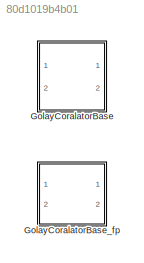
MODEL slx_80d1019b4b01
KIND library
CONFIG AbsTol = auto
CONFIG EnableMultiTasking = on
CONFIG FixedStep = auto
CONFIG MaxStep = auto
CONFIG MinStep = auto
CONFIG RelTol = 1e-3
CONFIG SampleTimeConstraint = Unconstrained
CONFIG Solver = ode45
CONFIG SolverName = ode45
CONFIG StartTime = 0.0
CONFIG StopTime = 10.0
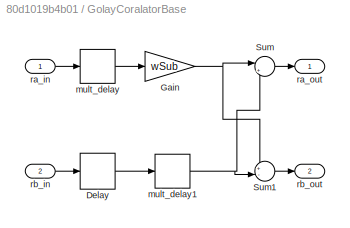
BLOCK [SubSystem] GolayCoralatorBase
  Ports = [2, 2]
  RequestExecContextInheritance = off
  ShowPortLabels = SignalName
  Variant = off
BLOCK [Delay] GolayCoralatorBase/Delay
  DelayLength = dSub
  DelayLengthUpperLimit = 1000
  DiagnosticForDelayLength = Error
  InitialCondition = 0
  InputPortMap = u0
  Ports = [1, 1]
  UseCircularBuffer = on
BLOCK [Gain] GolayCoralatorBase/Gain
  Gain = wSub
  ParamDataTypeStr = Inherit: Inherit via internal rule
  SaturateOnIntegerOverflow = off
BLOCK [Sum] GolayCoralatorBase/Sum
  AccumDataTypeStr = Inherit: Same as first input
  IconShape = round
  InputSameDT = off
  Inputs = |++
  OutDataTypeStr = Inherit: Inherit via internal rule
  Ports = [2, 1]
  SaturateOnIntegerOverflow = off
BLOCK [Sum] GolayCoralatorBase/Sum1
  AccumDataTypeStr = Inherit: Same as first input
  IconShape = round
  InputSameDT = off
  Inputs = +-|
  OutDataTypeStr = Inherit: Inherit via internal rule
  Ports = [2, 1]
  SaturateOnIntegerOverflow = off
BLOCK [Delay] GolayCoralatorBase/mult_delay
  DelayLength = mult_pipeline
  InputPortMap = u0
  Ports = [1, 1]
BLOCK [Delay] GolayCoralatorBase/mult_delay1
  DelayLength = mult_pipeline
  InputPortMap = u0
  Ports = [1, 1]
BLOCK [Inport] GolayCoralatorBase/ra_in
  IconDisplay = Port number
  OutDataTypeStr = int16
BLOCK [Outport] GolayCoralatorBase/ra_out
  IconDisplay = Port number
  OutDataTypeStr = int16
BLOCK [Inport] GolayCoralatorBase/rb_in
  IconDisplay = Port number
  OutDataTypeStr = int16
  Port = 2
BLOCK [Outport] GolayCoralatorBase/rb_out
  IconDisplay = Port number
  OutDataTypeStr = int16
  Port = 2
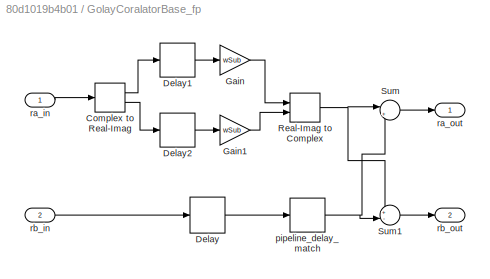
BLOCK [SubSystem] GolayCoralatorBase_fp
  Ports = [2, 2]
  RequestExecContextInheritance = off
  Variant = off
BLOCK [ComplexToRealImag] GolayCoralatorBase_fp/Complex to Real-Imag
  Ports = [1, 2]
BLOCK [Delay] GolayCoralatorBase_fp/Delay
  DelayLength = dSub
  DelayLengthUpperLimit = 1000
  DiagnosticForDelayLength = Error
  InitialCondition = 0
  InputPortMap = u0
  Ports = [1, 1]
  UseCircularBuffer = on
BLOCK [Delay] GolayCoralatorBase_fp/Delay1
  DelayLength = mult
  InitialCondition = 0
  InputPortMap = u0
  Ports = [1, 1]
BLOCK [Delay] GolayCoralatorBase_fp/Delay2
  DelayLength = mult
  InitialCondition = 0
  InputPortMap = u0
  Ports = [1, 1]
BLOCK [Gain] GolayCoralatorBase_fp/Gain
  Gain = wSub
  SaturateOnIntegerOverflow = off
BLOCK [Gain] GolayCoralatorBase_fp/Gain1
  Gain = wSub
  SaturateOnIntegerOverflow = off
BLOCK [RealImagToComplex] GolayCoralatorBase_fp/Real-Imag to Complex
  Ports = [2, 1]
BLOCK [Sum] GolayCoralatorBase_fp/Sum
  IconShape = round
  InputSameDT = off
  Inputs = |++
  Ports = [2, 1]
  SaturateOnIntegerOverflow = off
BLOCK [Sum] GolayCoralatorBase_fp/Sum1
  IconShape = round
  InputSameDT = off
  Inputs = +-|
  Ports = [2, 1]
  SaturateOnIntegerOverflow = off
BLOCK [Delay] GolayCoralatorBase_fp/pipeline_delay_match
  DelayLength = mult
  InputPortMap = u0
  Ports = [1, 1]
BLOCK [Inport] GolayCoralatorBase_fp/ra_in
  IconDisplay = Port number
BLOCK [Outport] GolayCoralatorBase_fp/ra_out
  IconDisplay = Port number
BLOCK [Inport] GolayCoralatorBase_fp/rb_in
  IconDisplay = Port number
  Port = 2
BLOCK [Outport] GolayCoralatorBase_fp/rb_out
  IconDisplay = Port number
  Port = 2
LINE GolayCoralatorBase/Delay:1 -> GolayCoralatorBase/mult_delay1:1
NET GolayCoralatorBase/Gain:1 -> GolayCoralatorBase/Sum1:1, GolayCoralatorBase/Sum:1
LINE GolayCoralatorBase/Sum1:1 -> GolayCoralatorBase/rb_out:1
LINE GolayCoralatorBase/Sum:1 -> GolayCoralatorBase/ra_out:1
NET GolayCoralatorBase/mult_delay1:1 -> GolayCoralatorBase/Sum1:2, GolayCoralatorBase/Sum:2
LINE GolayCoralatorBase/mult_delay:1 -> GolayCoralatorBase/Gain:1
LINE GolayCoralatorBase/ra_in:1 -> GolayCoralatorBase/mult_delay:1
LINE GolayCoralatorBase/rb_in:1 -> GolayCoralatorBase/Delay:1
LINE GolayCoralatorBase_fp/Complex to Real-Imag:1 -> GolayCoralatorBase_fp/Delay1:1
LINE GolayCoralatorBase_fp/Complex to Real-Imag:2 -> GolayCoralatorBase_fp/Delay2:1
LINE GolayCoralatorBase_fp/Delay1:1 -> GolayCoralatorBase_fp/Gain:1
LINE GolayCoralatorBase_fp/Delay2:1 -> GolayCoralatorBase_fp/Gain1:1
LINE GolayCoralatorBase_fp/Delay:1 -> GolayCoralatorBase_fp/pipeline_delay_match:1
LINE GolayCoralatorBase_fp/Gain1:1 -> GolayCoralatorBase_fp/Real-Imag to Complex:2
LINE GolayCoralatorBase_fp/Gain:1 -> GolayCoralatorBase_fp/Real-Imag to Complex:1
NET GolayCoralatorBase_fp/Real-Imag to Complex:1 -> GolayCoralatorBase_fp/Sum1:1, GolayCoralatorBase_fp/Sum:1
LINE GolayCoralatorBase_fp/Sum1:1 -> GolayCoralatorBase_fp/rb_out:1
LINE GolayCoralatorBase_fp/Sum:1 -> GolayCoralatorBase_fp/ra_out:1
NET GolayCoralatorBase_fp/pipeline_delay_match:1 -> GolayCoralatorBase_fp/Sum1:2, GolayCoralatorBase_fp/Sum:2
LINE GolayCoralatorBase_fp/ra_in:1 -> GolayCoralatorBase_fp/Complex to Real-Imag:1
LINE GolayCoralatorBase_fp/rb_in:1 -> GolayCoralatorBase_fp/Delay:1
note: NET lines group one-source signal fan-out (src -> all destinations, sorted); 1:1 wires keep LINE
